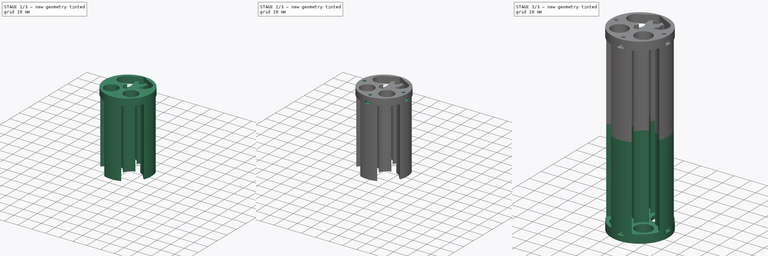
[diagram: build sequence overview — one tinted view per stage of 3, left to right]
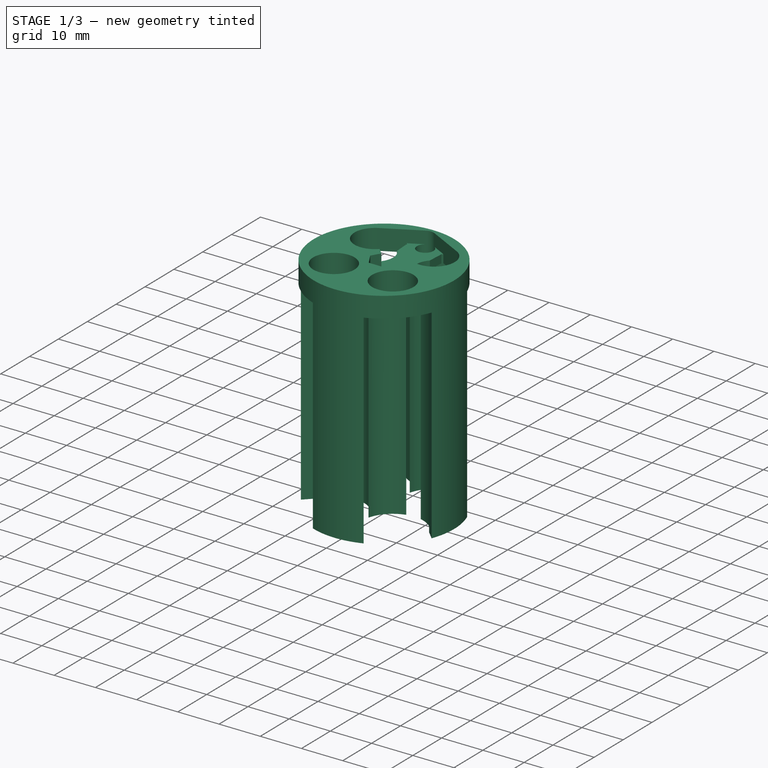
[diagram: stage 1 of 3 — iso view after this stage's code; geometry added in this stage tinted green]
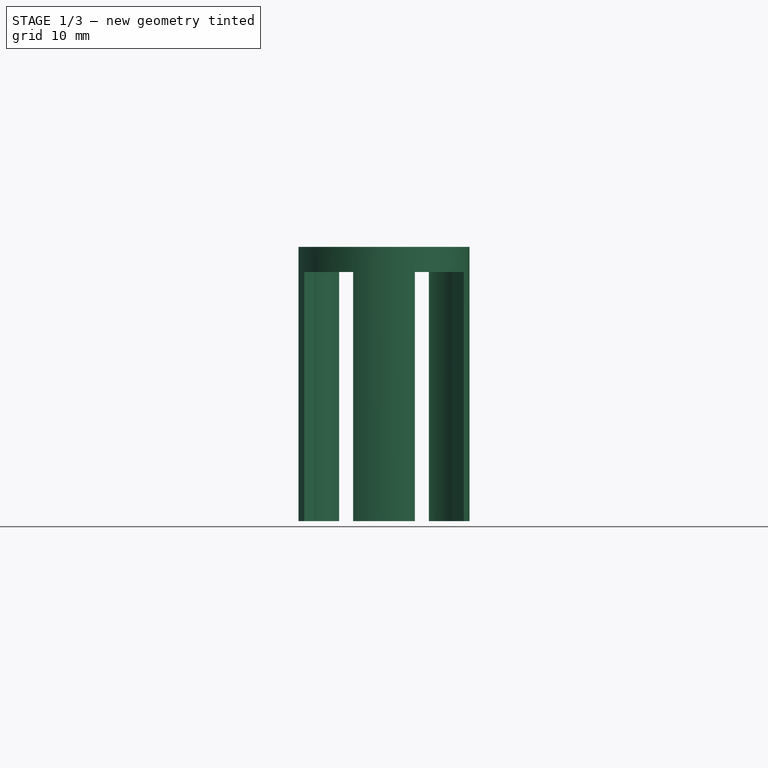
[diagram: stage 1 of 3 — front view after this stage's code; geometry added in this stage tinted green]
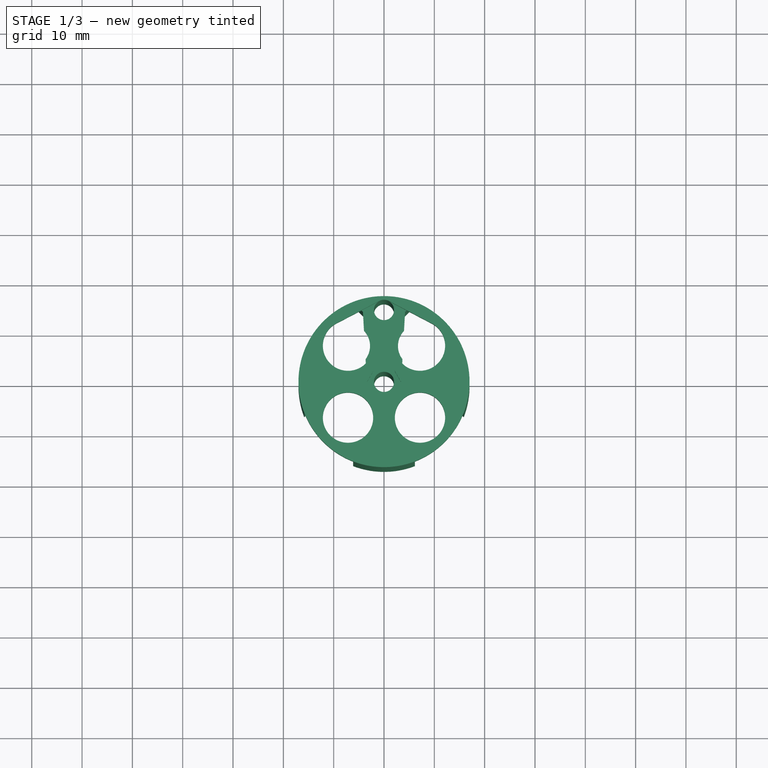
[diagram: stage 1 of 3 — top view after this stage's code; geometry added in this stage tinted green]
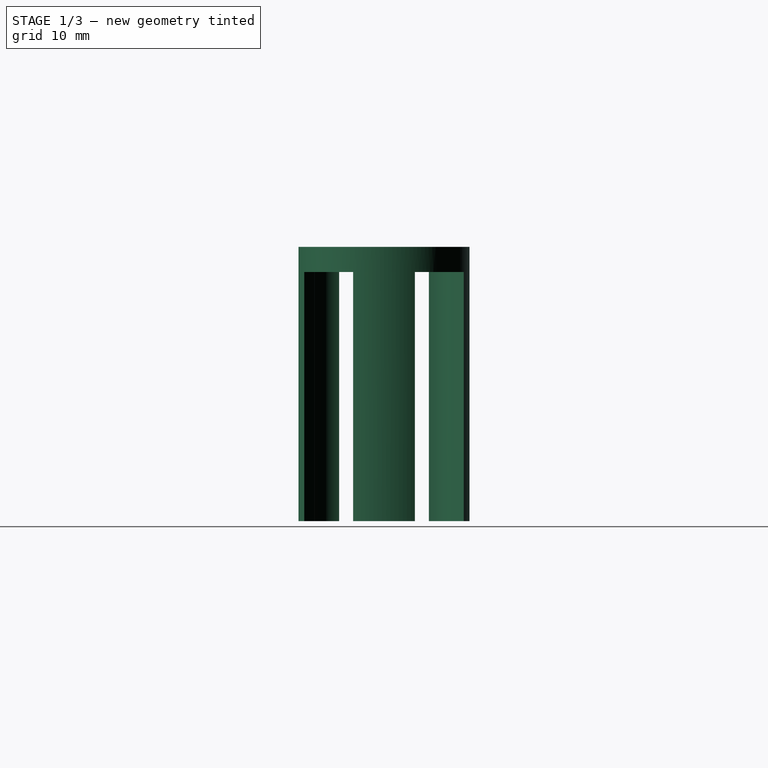
[diagram: stage 1 of 3 — right view after this stage's code; geometry added in this stage tinted green]
FCSTD DOCUMENT  (FreeCAD 0.19R24276 (Git))
Label: 2D_to_8AA_battery_carrier
License: All rights reserved
LicenseURL: http://en.wikipedia.org/wiki/All_rights_reserved
objects: Sketcher::SketchObject×6, PartDesign::Pad×4, Spreadsheet::Sheet×3, PartDesign::Pocket×2, PartDesign::Plane×2, PartDesign::Mirrored×2, PartDesign::Body×1
note: 23 computed .brp shape members not serialized (recipe doc carries the construction recipe); baked Part::Feature solids carry a one-line shape summary decoded from their .brp

FEATURE [Sketcher::SketchObject] Sketch
  FullyConstrained = true
  MapMode = 5
  Support = -> [XY_Plane]
  expr: Constraints[26] = <<carrier_dims>>.battery_bay_diam
  expr: Constraints[29] = <<carrier_dims>>.outer_tube_diam
  expr: Constraints[25] = <<batter_dims>>.AA_diam + <<carrier_dims>>.battery_to_barry_gap
  expr: Constraints[51] = <<carrier_dims>>.battery_bay_opening
  expr: Constraints[40] = <<carrier_dims>>.overall_diam
  expr: Constraints[96] = <<carrier_dims>>.central_tube_diam
  sketch-geometry (52):
    g0: Circle CenterX=0 CenterY=0 CenterZ=0 NormalX=0 NormalY=0 NormalZ=1 AngleXU=0 Radius=17
    g1: Circle CenterX=-7.15 CenterY=7.15 CenterZ=0 NormalX=0 NormalY=0 NormalZ=1 AngleXU=0 Radius=7.3645
    g2: Circle CenterX=7.15 CenterY=7.15 CenterZ=0 NormalX=0 NormalY=0 NormalZ=1 AngleXU=0 Radius=7.3645
    g3: Circle CenterX=7.15 CenterY=-7.15 CenterZ=0 NormalX=0 NormalY=0 NormalZ=1 AngleXU=0 Radius=7.3645
    g4: Circle CenterX=-7.15 CenterY=-7.15 CenterZ=0 NormalX=0 NormalY=0 NormalZ=1 AngleXU=0 Radius=7.3645
    g5: LineSegment StartX=-7.15 StartY=7.15 StartZ=0 EndX=7.15 EndY=7.15 EndZ=0
    g6: LineSegment StartX=7.15 StartY=7.15 StartZ=0 EndX=7.15 EndY=-7.15 EndZ=0
    g7: LineSegment StartX=7.15 StartY=-7.15 StartZ=0 EndX=-7.15 EndY=-7.15 EndZ=0
    g8: LineSegment StartX=-7.15 StartY=-7.15 StartZ=0 EndX=-7.15 EndY=7.15 EndZ=0
    g9: LineSegment StartX=0 StartY=7.15 StartZ=0 EndX=0 EndY=-7.15 EndZ=0
    g10: LineSegment StartX=-7.15 StartY=0 StartZ=0 EndX=7.15 EndY=0 EndZ=0
    g11: Circle CenterX=0 CenterY=0 CenterZ=0 NormalX=0 NormalY=0 NormalZ=1 AngleXU=0 Radius=2
    g12: Circle CenterX=0 CenterY=14.2724 CenterZ=0 NormalX=0 NormalY=0 NormalZ=1 AngleXU=0 Radius=2
    g13: LineSegment StartX=0 StartY=17 StartZ=0 EndX=0 EndY=14.2724 EndZ=0
    g14: LineSegment StartX=0 StartY=14.2724 StartZ=0 EndX=1.93245 EndY=12.3474 EndZ=0
    g15: LineSegment StartX=0 StartY=7.15 StartZ=0 EndX=0 EndY=17 EndZ=0
    g16: LineSegment StartX=-13.8906 StartY=-4.1834 StartZ=0 EndX=-15.851 EndY=-6.14382 EndZ=0
    g17: LineSegment StartX=-13.8906 StartY=-4.1834 StartZ=0 EndX=-4.1834 EndY=-13.8906 EndZ=0
    g18: LineSegment StartX=0 StartY=0 StartZ=0 EndX=-9.03698 EndY=-9.03698 EndZ=0
    g19: LineSegment StartX=0 StartY=0 StartZ=0 EndX=9.03698 EndY=9.03698 EndZ=0
    g20: LineSegment StartX=4.1834 StartY=13.8906 StartZ=0 EndX=13.8906 EndY=4.1834 EndZ=0
    g21: LineSegment StartX=4.1834 StartY=13.8906 StartZ=0 EndX=6.14382 EndY=15.851 EndZ=0
    g22: LineSegment StartX=13.8906 StartY=4.1834 StartZ=0 EndX=15.851 EndY=6.14382 EndZ=0
    g23: LineSegment StartX=0 StartY=0 StartZ=0 EndX=-9.03698 EndY=9.03698 EndZ=0
    g24: LineSegment StartX=0 StartY=0 StartZ=0 EndX=9.03698 EndY=-9.03698 EndZ=0
    g25: LineSegment StartX=4.1834 StartY=-13.8906 StartZ=0 EndX=13.8906 EndY=-4.1834 EndZ=0
    g26: LineSegment StartX=4.1834 StartY=-13.8906 StartZ=0 EndX=6.14382 EndY=-15.851 EndZ=0
    g27: LineSegment StartX=13.8906 StartY=-4.1834 StartZ=0 EndX=15.851 EndY=-6.14382 EndZ=0
    g28: LineSegment StartX=-13.8906 StartY=4.1834 StartZ=0 EndX=-4.1834 EndY=13.8906 EndZ=0
    g29: LineSegment StartX=-4.1834 StartY=13.8906 StartZ=0 EndX=-6.14382 EndY=15.851 EndZ=0
    g30: LineSegment StartX=-13.8906 StartY=4.1834 StartZ=0 EndX=-15.851 EndY=6.14382 EndZ=0
    g31: LineSegment StartX=-4.1834 StartY=-13.8906 StartZ=0 EndX=-6.14382 EndY=-15.851 EndZ=0
    g32: LineSegment StartX=-13.8906 StartY=-4.1834 StartZ=0 EndX=-15.851 EndY=-6.14382 EndZ=0
    g33: Circle CenterX=0 CenterY=0 CenterZ=0 NormalX=0 NormalY=0 NormalZ=1 AngleXU=0 Radius=2
    g34: Circle CenterX=0 CenterY=14.2724 CenterZ=0 NormalX=0 NormalY=0 NormalZ=1 AngleXU=0 Radius=2
    g35: ArcOfCircle CenterX=0 CenterY=0 CenterZ=0 NormalX=0 NormalY=0 NormalZ=1 AngleXU=0 Radius=17 StartAngle=2.77182 EndAngle=3.51136
    g36: ArcOfCircle CenterX=0 CenterY=0 CenterZ=0 NormalX=0 NormalY=0 NormalZ=1 AngleXU=0 Radius=17 StartAngle=1.20103 EndAngle=1.94057
    g37: ArcOfCircle CenterX=0 CenterY=0 CenterZ=0 NormalX=0 NormalY=0 NormalZ=1 AngleXU=0 Radius=17 StartAngle=5.91342 EndAngle=6.65296
    g38: ArcOfCircle CenterX=0 CenterY=0 CenterZ=0 NormalX=0 NormalY=0 NormalZ=1 AngleXU=0 Radius=17 StartAngle=4.34262 EndAngle=5.08216
    g39: ArcOfCircle CenterX=-7.15 CenterY=-7.15 CenterZ=0 NormalX=0 NormalY=0 NormalZ=1 AngleXU=0 Radius=7.3645 StartAngle=1.81274 EndAngle=2.72699
    g40: GeomPoint X=-8.91447 Y=0 Z=0
    g41: ArcOfCircle CenterX=-7.15 CenterY=-7.15 CenterZ=0 NormalX=0 NormalY=0 NormalZ=1 AngleXU=0 Radius=7.3645 StartAngle=0.241945 EndAngle=1.32885
    g42: ArcOfCircle CenterX=-7.15 CenterY=-7.15 CenterZ=0 NormalX=0 NormalY=0 NormalZ=1 AngleXU=0 Radius=7.3645 StartAngle=5.12699 EndAngle=6.04124
    g43: ArcOfCircle CenterX=-7.15 CenterY=7.15 CenterZ=0 NormalX=0 NormalY=0 NormalZ=1 AngleXU=0 Radius=7.3645 StartAngle=4.95433 EndAngle=6.04124
    g44: ArcOfCircle CenterX=-7.15 CenterY=7.15 CenterZ=0 NormalX=0 NormalY=0 NormalZ=1 AngleXU=0 Radius=7.3645 StartAngle=0.241945 EndAngle=1.1562
    g45: ArcOfCircle CenterX=-7.15 CenterY=7.15 CenterZ=0 NormalX=0 NormalY=0 NormalZ=1 AngleXU=0 Radius=7.3645 StartAngle=3.55619 EndAngle=4.47044
    g46: ArcOfCircle CenterX=7.15 CenterY=7.15 CenterZ=0 NormalX=0 NormalY=0 NormalZ=1 AngleXU=0 Radius=7.3645 StartAngle=1.9854 EndAngle=2.89965
    g47: ArcOfCircle CenterX=7.15 CenterY=7.15 CenterZ=0 NormalX=0 NormalY=0 NormalZ=1 AngleXU=0 Radius=7.3645 StartAngle=3.38354 EndAngle=4.47044
    g48: ArcOfCircle CenterX=7.15 CenterY=7.15 CenterZ=0 NormalX=0 NormalY=0 NormalZ=1 AngleXU=0 Radius=7.3645 StartAngle=4.95433 EndAngle=5.86858
    g49: ArcOfCircle CenterX=7.15 CenterY=-7.15 CenterZ=0 NormalX=0 NormalY=0 NormalZ=1 AngleXU=0 Radius=7.3645 StartAngle=1.81274 EndAngle=2.89965
    g50: ArcOfCircle CenterX=7.15 CenterY=-7.15 CenterZ=0 NormalX=0 NormalY=0 NormalZ=1 AngleXU=0 Radius=7.3645 StartAngle=0.414601 EndAngle=1.32885
    g51: ArcOfCircle CenterX=7.15 CenterY=-7.15 CenterZ=0 NormalX=0 NormalY=0 NormalZ=1 AngleXU=0 Radius=7.3645 StartAngle=3.38354 EndAngle=4.29779
  constraints (141):
    c: Coincident(g0,g-1)
    c: Coincident(g5,g6)
    c: Coincident(g6,g7)
    c: Coincident(g7,g8)
    c: Coincident(g8,g5)
    c: Horizontal(g5)
    c: Horizontal(g7)
    c: Vertical(g6)
    c: Vertical(g8)
    c: PointOnObject(g9,g5)
    c: PointOnObject(g9,g7)
    c: Vertical(g9)
    c: Symmetric(g9,g9,g-1)
    c: PointOnObject(g10,g8)
    c: PointOnObject(g10,g6)
    c: Horizontal(g10)
    c: Symmetric(g10,g10,g-1)
    c: Equal(g5,g6)
    c: Coincident(g1,g5)
    c: Coincident(g2,g5)
    c: Coincident(g3,g6)
    c: Coincident(g4,g7)
    c: Equal(g3,g4)
    c: Equal(g4,g1)
    c: Equal(g1,g2)
    c: DistanceY(g4,g1) = 14.3
    c: Diameter(g1) = 14.729
    c: Coincident(g11,g-1)
    c: PointOnObject(g13,g0)
    c: Diameter(g12) = 4
    c: Coincident(g13,g12)
    c: Coincident(g14,g12)
    c: PointOnObject(g14,g2)
    c: Perpendicular(g2,g14)
    c: Vertical(g13)
    c: Equal(g13,g14)
    c: Coincident(g15,g9)
    c: PointOnObject(g15,g0)
    c: Vertical(g15)
    c: PointOnObject(g12,g15)
    c: Diameter(g0) = 34
    c: PointOnObject(g16,g4)
    c: PointOnObject(g16,g0)
    c: Coincident(g17,g16)
    c: PointOnObject(g17,g4)
    c: PointOnObject(g31,g0)
    c: Coincident(g18,g-1)
    c: PointOnObject(g18,g17)
    c: PointOnObject(g4,g18)
    c: Perpendicular(g17,g18)
    c: Parallel(g16,g18)
    c: Distance(g17) = 13.728
    c: Coincident(g19,g-1)
    c: PointOnObject(g2,g19)
    c: PointOnObject(g20,g2)
    c: PointOnObject(g20,g2)
    c: PointOnObject(g19,g20)
    c: Perpendicular(g19,g20)
    c: Coincident(g21,g20)
    c: Coincident(g22,g20)
    c: PointOnObject(g22,g0)
    c: Parallel(g22,g21)
    c: Parallel(g21,g19)
    c: Coincident(g23,g-1)
    c: Coincident(g24,g-1)
    c: PointOnObject(g25,g3)
    c: PointOnObject(g25,g3)
    c: Coincident(g26,g25)
    c: Coincident(g27,g25)
    c: PointOnObject(g28,g1)
    c: PointOnObject(g28,g1)
    c: Coincident(g29,g28)
    c: PointOnObject(g29,g0)
    c: Coincident(g30,g28)
    c: PointOnObject(g1,g23)
    c: PointOnObject(g3,g24)
    c: PointOnObject(g24,g25)
    c: PointOnObject(g23,g28)
    c: Parallel(g29,g30)
    c: Parallel(g30,g23)
    c: Parallel(g23,g26)
    c: Parallel(g26,g27)
    c: Perpendicular(g24,g25)
    c: Perpendicular(g28,g23)
    c: Equal(g25,g28)
    c: Equal(g28,g17)
    c: Equal(g28,g20)
    c: Coincident(g31,g17)
    c: Coincident(g32,g16)
    c: Coincident(g32,g16)
    c: Coincident(g33,g-1)
    c: Equal(g11,g33)
    c: Coincident(g34,g12)
    c: Equal(g34,g12)
    c: Coincident(g35,g33)
    c: Coincident(g35,g32)
    c: Diameter(g33) = 4
    c: Coincident(g35,g30)
    c: Coincident(g36,g33)
    c: Coincident(g36,g29)
    c: Coincident(g36,g21)
    c: Coincident(g37,g33)
    c: Coincident(g37,g22)
    c: Coincident(g37,g27)
    c: Coincident(g38,g33)
    c: Coincident(g38,g26)
    c: Coincident(g38,g31)
    c: Parallel(g31,g18)
    c: Coincident(g39,g32)
    c: Coincident(g39,g40)
    c: Coincident(g39,g4)
    c: Coincident(g41,g39)
    c: PointOnObject(g41,g4)
    c: PointOnObject(g41,g1)
    c: PointOnObject(g41,g3)
    c: Coincident(g42,g39)
    c: Coincident(g31,g42)
    c: Coincident(g43,g1)
    c: Coincident(g43,g41)
    c: PointOnObject(g43,g2)
    c: Coincident(g44,g43)
    c: Coincident(g44,g29)
    c: Coincident(g45,g43)
    c: Coincident(g45,g30)
    c: Coincident(g45,g39)
    c: Coincident(g46,g2)
    c: Coincident(g46,g21)
    c: Coincident(g46,g44)
    c: Coincident(g47,g46)
    c: Coincident(g47,g43)
    c: Coincident(g48,g46)
    c: Coincident(g48,g22)
    c: Coincident(g49,g3)
    c: Coincident(g49,g41)
    c: Coincident(g49,g47)
    c: Coincident(g50,g49)
    c: Coincident(g50,g48)
    c: Coincident(g50,g27)
    c: Coincident(g51,g49)
    c: Coincident(g51,g42)
    c: Coincident(g51,g26)
FEATURE [Spreadsheet::Sheet] Spreadsheet  label="carrier_dims"
  cells = A1=battery to battery gap; B1(battery_to_barry_gap)=0; A2=carrier battery length; B2(carrier_battery_length)=99; A3=central tube; B3(central_tube_diam)=4; A4=outer tube; B4(outer_tube_diam)=4; A5=carrier overall diam; B5(overall_diam)=34; A6=battery opening ; B6(battery_bay_opening)==<<batter_dims>>.AA_diam * 0.96; A7=battery bay buffer; B7(battery_bay_diam)==<<batter_dims>>.AA_diam * 1.03; A8=battery end opening diam; B8(battery_end_opening_diam)=10; A9=cap_plate_thickness; B9(cap_plate_thickness)=5
FEATURE [Spreadsheet::Sheet] Spreadsheet001  label="batter_dims"
  cells = A1=AA battery diam; B1(AA_diam)=14.3; A2=AA bottom diam; B2(AA_bottom_diam)=8.75
FEATURE [Sketcher::SketchObject] Sketch001
  ExternalGeometry = -> [Sketch]
  FullyConstrained = true
  MapMode = 5
  Support = -> [XY_Plane]
  expr: Constraints[9] = <<carrier_dims>>.battery_end_opening_diam
  expr: Constraints[29] = <<screw dims>>.m3_nut_diam
  expr: .AttachmentOffset.Base.z = 0
  sketch-geometry (26):
    g0: Circle CenterX=0 CenterY=0 CenterZ=0 NormalX=0 NormalY=0 NormalZ=1 AngleXU=0 Radius=17
    g1: Circle CenterX=-7.15 CenterY=-7.15 CenterZ=0 NormalX=0 NormalY=0 NormalZ=1 AngleXU=0 Radius=5
    g2: Circle CenterX=-7.15 CenterY=7.15 CenterZ=0 NormalX=0 NormalY=0 NormalZ=1 AngleXU=0 Radius=5
    g3: Circle CenterX=7.15 CenterY=7.15 CenterZ=0 NormalX=0 NormalY=0 NormalZ=1 AngleXU=0 Radius=5
    g4: Circle CenterX=7.15 CenterY=-7.15 CenterZ=0 NormalX=0 NormalY=0 NormalZ=1 AngleXU=0 Radius=5
    g5: LineSegment StartX=3.34863 StartY=0 StartZ=0 EndX=1.67432 EndY=2.9 EndZ=0
    g6: LineSegment StartX=1.67432 StartY=2.9 StartZ=0 EndX=-1.67432 EndY=2.9 EndZ=0
    g7: LineSegment StartX=-1.67432 StartY=2.9 StartZ=0 EndX=-3.34863 EndY=0 EndZ=0
    g8: LineSegment StartX=-3.34863 StartY=0 StartZ=0 EndX=-1.67432 EndY=-2.9 EndZ=0
    g9: LineSegment StartX=-1.67432 StartY=-2.9 StartZ=0 EndX=1.67432 EndY=-2.9 EndZ=0
    g10: LineSegment StartX=1.67432 StartY=-2.9 StartZ=0 EndX=3.34863 EndY=0 EndZ=0
    g11: Circle CenterX=0 CenterY=0 CenterZ=0 NormalX=0 NormalY=0 NormalZ=1 AngleXU=0 Radius=3.34863
    g12: Circle CenterX=0 CenterY=14.2724 CenterZ=0 NormalX=0 NormalY=0 NormalZ=1 AngleXU=0 Radius=2
    g13: LineSegment StartX=-3.61447 StartY=3.61447 StartZ=0 EndX=-2.12295 EndY=2.12295 EndZ=0
    g14: LineSegment StartX=2.12295 StartY=2.12295 StartZ=0 EndX=3.61447 EndY=3.61447 EndZ=0
    g15: LineSegment StartX=-3.34863 StartY=0 StartZ=0 EndX=-2.12295 EndY=2.12295 EndZ=0
    g16: LineSegment StartX=3.34863 StartY=0 StartZ=0 EndX=2.12295 EndY=2.12295 EndZ=0
    g17: LineSegment StartX=-0.926466 StartY=16.0449 StartZ=0 EndX=-9.46616 EndY=11.5812 EndZ=0
    g18: LineSegment StartX=0.926466 StartY=16.0449 StartZ=0 EndX=9.46616 EndY=11.5812 EndZ=0
    g19: ArcOfCircle CenterX=-7.15 CenterY=7.15 CenterZ=0 NormalX=0 NormalY=0 NormalZ=1 AngleXU=0 Radius=5 StartAngle=2.05244 EndAngle=5.49779
    g20: ArcOfCircle CenterX=7.15 CenterY=7.15 CenterZ=0 NormalX=0 NormalY=0 NormalZ=1 AngleXU=0 Radius=5 StartAngle=3.92699 EndAngle=7.37234
    g21: LineSegment StartX=-9.46616 StartY=11.5812 StartZ=0 EndX=-0.926466 EndY=16.0449 EndZ=0
    g22: LineSegment StartX=0.926466 StartY=16.0449 StartZ=0 EndX=9.46616 EndY=11.5812 EndZ=0
    g23: ArcOfCircle CenterX=0 CenterY=14.2724 CenterZ=0 NormalX=0 NormalY=0 NormalZ=1 AngleXU=0 Radius=2 StartAngle=1.08916 EndAngle=2.05244
    g24: LineSegment StartX=0 StartY=0 StartZ=0 EndX=7.15 EndY=7.15 EndZ=0
    g25: LineSegment StartX=0 StartY=0 StartZ=0 EndX=-7.15 EndY=7.15 EndZ=0
  constraints (63):
    c: Coincident(g0,g-1)
    c: PointOnObject(g-5,g0)
    c: Coincident(g1,g-9)
    c: Coincident(g2,g-6)
    c: Coincident(g3,g-7)
    c: Coincident(g4,g-8)
    c: Equal(g4,g1)
    c: Equal(g1,g2)
    c: Equal(g2,g3)
    c: Diameter(g4) = 10
    c: Coincident(g5,g6)
    c: Coincident(g6,g7)
    c: Coincident(g7,g8)
    c: Coincident(g8,g9)
    c: Coincident(g9,g10)
    c: Coincident(g10,g5)
    c: Equal(g5, g6-g10) x5
    c: PointOnObject(g5,g11)
    c: PointOnObject(g6,g11)
    c: PointOnObject(g7,g11)
    c: PointOnObject(g8,g11)
    c: PointOnObject(g9,g11)
    c: PointOnObject(g10,g11)
    c: Coincident(g11,g0)
    c: Horizontal(g9)
    c: Distance(g8,g5) = 5.8
    c: Coincident(g12,g-4)
    c: Equal(g12,g-4)
    c: PointOnObject(g13,g7)
    c: PointOnObject(g14,g3)
    c: PointOnObject(g14,g5)
    c: Coincident(g15,g8)
    c: Coincident(g15,g13)
    c: Coincident(g16,g10)
    c: Coincident(g16,g14)
    c: PointOnObject(g13,g2)
    c: PointOnObject(g17,g12)
    c: Tangent(g17,g12)
    c: PointOnObject(g18,g12)
    c: Tangent(g18,g12)
    c: Equal(g18,g17)
    c: PointOnObject(g18,g3)
    c: Tangent(g18,g3)
    c: PointOnObject(g17,g2)
    c: Coincident(g19,g2)
    c: Coincident(g19,g17)
    c: PointOnObject(g19,g13)
    c: Coincident(g20,g3)
    c: Coincident(g20,g18)
    c: PointOnObject(g20,g14)
    c: Coincident(g21,g19)
    c: Coincident(g21,g17)
    c: Coincident(g22,g18)
    c: Coincident(g22,g20)
    c: Coincident(g23,g12)
    c: Coincident(g23,g22)
    c: PointOnObject(g23,g21)
    c: Coincident(g24,g0)
    c: Coincident(g24,g20)
    c: Coincident(g25,g0)
    c: Coincident(g25,g19)
    c: Tangent(g13,g25)
    c: Tangent(g14,g24)
FEATURE [Spreadsheet::Sheet] Spreadsheet002  label="screw dims"
  cells = A1=m3 nut diam; B1(m3_nut_diam)=5.8; A2=m3 nut thickness; B2(m3_nut_thickness)=3.5; A4=m2 diam; B4(m2_diam)=2.2; A5=m2 nut; B5(m2_nut_width)=4; A6=m2 nut thickness; B6(m2_nut_thickness)=2
FEATURE [Sketcher::SketchObject] Sketch002
  ExternalGeometry = -> [Sketch]
  FullyConstrained = true
  MapMode = 5
  Support = -> [XY_Plane]
  expr: Constraints[73] = <<screw dims>>.m2_nut_width
  sketch-geometry (35):
    g0: LineSegment StartX=-14.2724 StartY=0 StartZ=0 EndX=0 EndY=0 EndZ=0
    g1: LineSegment StartX=0 StartY=0 StartZ=0 EndX=14.2724 EndY=0 EndZ=0
    g2: LineSegment StartX=0 StartY=0 StartZ=0 EndX=0 EndY=-14.2724 EndZ=0
    g3: LineSegment StartX=-14.2724 StartY=0 StartZ=0 EndX=-12.3474 EndY=1.93245 EndZ=0
    g4: LineSegment StartX=-14.2724 StartY=0 StartZ=0 EndX=-17 EndY=0 EndZ=0
    g5: LineSegment StartX=-13.1177 StartY=-2 StartZ=0 EndX=-11.963 EndY=2.53606e-11 EndZ=0
    g6: LineSegment StartX=-11.963 StartY=2.53608e-11 StartZ=0 EndX=-13.1177 EndY=2 EndZ=0
    g7: LineSegment StartX=-13.1177 StartY=2 StartZ=0 EndX=-15.4271 EndY=2 EndZ=0
    g8: LineSegment StartX=-15.4271 StartY=2 StartZ=0 EndX=-16.5818 EndY=-6.0043e-12 EndZ=0
    g9: LineSegment StartX=-16.5818 StartY=-6.0043e-12 StartZ=0 EndX=-15.4271 EndY=-2 EndZ=0
    g10: LineSegment StartX=-15.4271 StartY=-2 StartZ=0 EndX=-13.1177 EndY=-2 EndZ=0
    g11: Circle CenterX=-14.2724 CenterY=0 CenterZ=0 NormalX=0 NormalY=0 NormalZ=1 AngleXU=0 Radius=2.3094
    g12: LineSegment StartX=7e-16 StartY=-11.963 StartZ=0 EndX=-2 EndY=-13.1177 EndZ=0
    g13: LineSegment StartX=-2 StartY=-13.1177 StartZ=0 EndX=-2 EndY=-15.4271 EndZ=0
    g14: LineSegment StartX=-2 StartY=-15.4271 StartZ=0 EndX=-2e-16 EndY=-16.5818 EndZ=0
    g15: LineSegment StartX=-1e-16 StartY=-16.5818 StartZ=0 EndX=2 EndY=-15.4271 EndZ=0
    g16: LineSegment StartX=2 StartY=-15.4271 StartZ=0 EndX=2 EndY=-13.1177 EndZ=0
    g17: LineSegment StartX=2 StartY=-13.1177 StartZ=0 EndX=7e-16 EndY=-11.963 EndZ=0
    g18: Circle CenterX=0 CenterY=-14.2724 CenterZ=0 NormalX=0 NormalY=0 NormalZ=1 AngleXU=0 Radius=2.3094
    g19: LineSegment StartX=15.4271 StartY=-2 StartZ=0 EndX=16.5818 EndY=0 EndZ=0
    g20: LineSegment StartX=16.5818 StartY=0 StartZ=0 EndX=15.4271 EndY=2 EndZ=0
    g21: LineSegment StartX=15.4271 StartY=2 StartZ=0 EndX=13.1177 EndY=2 EndZ=0
    g22: LineSegment StartX=13.1177 StartY=2 StartZ=0 EndX=11.963 EndY=-2e-16 EndZ=0
    g23: LineSegment StartX=11.963 StartY=-3e-16 StartZ=0 EndX=13.1177 EndY=-2 EndZ=0
    g24: LineSegment StartX=13.1177 StartY=-2 StartZ=0 EndX=15.4271 EndY=-2 EndZ=0
    g25: Circle CenterX=14.2724 CenterY=0 CenterZ=0 NormalX=0 NormalY=0 NormalZ=1 AngleXU=0 Radius=2.3094
    g26: LineSegment StartX=-15.4271 StartY=2 StartZ=0 EndX=-16.8819 EndY=2 EndZ=0
    g27: LineSegment StartX=-15.4271 StartY=-2 StartZ=0 EndX=-16.8819 EndY=-2 EndZ=0
    g28: LineSegment StartX=15.4271 StartY=2 StartZ=0 EndX=16.8819 EndY=2 EndZ=0
    g29: LineSegment StartX=15.4271 StartY=-2 StartZ=0 EndX=16.8819 EndY=-2 EndZ=0
    g30: LineSegment StartX=2 StartY=-15.4271 StartZ=0 EndX=2 EndY=-16.8819 EndZ=0
    g31: LineSegment StartX=-2 StartY=-15.4271 StartZ=0 EndX=-2 EndY=-16.8819 EndZ=0
    g32: ArcOfCircle CenterX=0 CenterY=0 CenterZ=0 NormalX=0 NormalY=0 NormalZ=1 AngleXU=0 Radius=17 StartAngle=3.02367 EndAngle=3.25951
    g33: ArcOfCircle CenterX=0 CenterY=0 CenterZ=0 NormalX=0 NormalY=0 NormalZ=1 AngleXU=0 Radius=17 StartAngle=6.16527 EndAngle=6.40111
    g34: ArcOfCircle CenterX=0 CenterY=0 CenterZ=0 NormalX=0 NormalY=0 NormalZ=1 AngleXU=0 Radius=17 StartAngle=4.59447 EndAngle=4.83031
  constraints (90):
    c: Coincident(g0,g-1)
    c: Coincident(g1,g-1)
    c: Coincident(g2,g-1)
    c: Equal(g0,g1)
    c: Equal(g1,g2)
    c: PointOnObject(g3,g-4)
    c: PointOnObject(g4,g-13)
    c: Horizontal(g4)
    c: Equal(g3,g4)
    c: Perpendicular(g-4,g3)
    c: Coincident(g0,g3)
    c: Coincident(g0,g4)
    c: Horizontal(g0)
    c: Horizontal(g1)
    c: Vertical(g2)
    c: Coincident(g5,g6)
    c: Coincident(g6,g7)
    c: Coincident(g7,g8)
    c: Coincident(g8,g9)
    c: Coincident(g9,g10)
    c: Coincident(g10,g5)
    c: Equal(g5, g6-g10) x5
    c: PointOnObject(g5,g11)
    c: PointOnObject(g6,g11)
    c: PointOnObject(g7,g11)
    c: PointOnObject(g8,g11)
    c: PointOnObject(g9,g11)
    c: PointOnObject(g10,g11)
    c: Coincident(g11,g0)
    c: Coincident(g12,g13)
    c: Coincident(g13,g14)
    c: Coincident(g14,g15)
    c: Coincident(g15,g16)
    c: Coincident(g16,g17)
    c: Coincident(g17,g12)
    c: Equal(g12, g13-g17) x5
    c: PointOnObject(g12,g18)
    c: PointOnObject(g13,g18)
    c: PointOnObject(g14,g18)
    c: PointOnObject(g15,g18)
    c: PointOnObject(g16,g18)
    c: PointOnObject(g17,g18)
    c: Coincident(g18,g2)
    c: Coincident(g19,g20)
    c: Coincident(g20,g21)
    c: Coincident(g21,g22)
    c: Coincident(g22,g23)
    c: Coincident(g23,g24)
    c: Coincident(g24,g19)
    c: Equal(g19, g20-g24) x5
    c: PointOnObject(g19,g25)
    c: PointOnObject(g20,g25)
    c: PointOnObject(g21,g25)
    c: PointOnObject(g22,g25)
    c: PointOnObject(g23,g25)
    c: PointOnObject(g24,g25)
    c: Coincident(g25,g1)
    c: Horizontal(g10)
    c: Horizontal(g24)
    c: Equal(g24,g16)
    c: Equal(g16,g10)
    c: Distance(g9,g5) = 4
    c: Vertical(g16)
    c: Coincident(g26,g7)
    c: PointOnObject(g26,g-13)
    c: Coincident(g27,g10)
    c: PointOnObject(g27,g-13)
    c: Horizontal(g27)
    c: Horizontal(g26)
    c: Coincident(g28,g21)
    c: PointOnObject(g28,g-9)
    c: Horizontal(g28)
    c: Coincident(g29,g24)
    c: PointOnObject(g29,g-9)
    c: Horizontal(g29)
    c: Coincident(g30,g16)
    c: PointOnObject(g30,g-10)
    c: Vertical(g30)
    c: Coincident(g31,g13)
    c: PointOnObject(g31,g-10)
    c: Vertical(g31)
    c: Coincident(g32,g-1)
    c: Coincident(g32,g26)
    c: PointOnObject(g32,g27)
    c: Coincident(g33,g32)
    c: Coincident(g33,g28)
    c: PointOnObject(g33,g29)
    c: Coincident(g34,g32)
    c: Coincident(g34,g31)
    c: PointOnObject(g34,g30)
FEATURE [PartDesign::Pad] Pad  label="cap"
  Direction = (1,1,1)
  Length = 5
  Length2 = 100
  Profile = -> Sketch001
  Type = 0
  expr: Length = <<carrier_dims>>.cap_plate_thickness
FEATURE [Sketcher::SketchObject] Sketch003
  ExternalGeometry = -> [Sketch,Sketch001]
  FullyConstrained = true
  MapMode = 5
  Support = -> [XY_Plane]
  expr: Constraints[28] = <<batter_dims>>.AA_bottom_diam
  sketch-geometry (23):
    g0: LineSegment StartX=-3.61447 StartY=3.61447 StartZ=0 EndX=-2.12295 EndY=2.12295 EndZ=0
    g1: LineSegment StartX=3.61447 StartY=3.61447 StartZ=0 EndX=2.12295 EndY=2.12295 EndZ=0
    g2: LineSegment StartX=-4.1834 StartY=13.8906 StartZ=0 EndX=-4.48018 EndY=14.1873 EndZ=0
    g3: LineSegment StartX=-4.48018 StartY=14.1873 StartZ=0 EndX=-0.926466 EndY=16.0449 EndZ=0
    g4: LineSegment StartX=0.926466 StartY=16.0449 StartZ=0 EndX=4.48018 EndY=14.1873 EndZ=0
    g5: LineSegment StartX=4.48018 StartY=14.1873 StartZ=0 EndX=4.1834 EndY=13.8906 EndZ=0
    g6: Circle CenterX=0 CenterY=0 CenterZ=0 NormalX=0 NormalY=0 NormalZ=1 AngleXU=0 Radius=2
    g7: ArcOfCircle CenterX=0 CenterY=14.2724 CenterZ=0 NormalX=0 NormalY=0 NormalZ=1 AngleXU=0 Radius=2 StartAngle=2.05244 EndAngle=7.37234
    g8: LineSegment StartX=-2.12295 StartY=2.12295 StartZ=0 EndX=-3.34863 EndY=0 EndZ=0
    g9: LineSegment StartX=2.12295 StartY=2.12295 StartZ=0 EndX=3.34863 EndY=0 EndZ=0
    g10: LineSegment StartX=1.67432 StartY=-2.9 StartZ=0 EndX=-1.67432 EndY=-2.9 EndZ=0
    g11: LineSegment StartX=-1.67432 StartY=-2.9 StartZ=0 EndX=-3.34863 EndY=0 EndZ=0
    g12: LineSegment StartX=1.67432 StartY=-2.9 StartZ=0 EndX=3.34863 EndY=0 EndZ=0
    g13: Circle CenterX=-7.15 CenterY=7.15 CenterZ=0 NormalX=0 NormalY=0 NormalZ=1 AngleXU=0 Radius=4.375
    g14: Circle CenterX=7.15 CenterY=7.15 CenterZ=0 NormalX=0 NormalY=0 NormalZ=1 AngleXU=0 Radius=4.375
    g15: LineSegment StartX=-4.1834 StartY=13.8906 StartZ=0 EndX=-3.61447 EndY=3.61447 EndZ=0
    g16: LineSegment StartX=4.1834 StartY=13.8906 StartZ=0 EndX=3.61447 EndY=3.61447 EndZ=0
    g17: LineSegment StartX=-4.1834 StartY=13.8906 StartZ=0 EndX=-3.97697 EndY=10.1621 EndZ=0
    g18: LineSegment StartX=-3.61447 StartY=3.61447 StartZ=0 EndX=-3.66386 EndY=4.50662 EndZ=0
    g19: LineSegment StartX=3.61447 StartY=3.61447 StartZ=0 EndX=3.66386 EndY=4.50662 EndZ=0
    g20: LineSegment StartX=4.1834 StartY=13.8906 StartZ=0 EndX=3.97697 EndY=10.1621 EndZ=0
    g21: ArcOfCircle CenterX=-7.15 CenterY=7.15 CenterZ=0 NormalX=0 NormalY=0 NormalZ=1 AngleXU=0 Radius=4.375 StartAngle=5.63442 EndAngle=7.04256
    g22: ArcOfCircle CenterX=7.15 CenterY=7.15 CenterZ=0 NormalX=0 NormalY=0 NormalZ=1 AngleXU=0 Radius=4.375 StartAngle=2.38221 EndAngle=3.79036
  constraints (55):
    c: Coincident(g3,g-8)
    c: Coincident(g2,g3)
    c: PointOnObject(g2,g-8)
    c: PointOnObject(g2,g-10)
    c: Coincident(g4,g-9)
    c: PointOnObject(g4,g-11)
    c: PointOnObject(g4,g-9)
    c: Coincident(g5,g4)
    c: Coincident(g6,g-1)
    c: Equal(g6,g-12)
    c: Coincident(g7,g-7)
    c: Coincident(g7,g3)
    c: PointOnObject(g7,g4)
    c: Coincident(g8,g0)
    c: Coincident(g8,g-14)
    c: Coincident(g0,g-13)
    c: Coincident(g1,g-17)
    c: Coincident(g9,g1)
    c: Coincident(g9,g-17)
    c: Coincident(g10,g-16)
    c: Coincident(g10,g-15)
    c: Coincident(g11,g10)
    c: Coincident(g11,g8)
    c: Coincident(g12,g10)
    c: Coincident(g12,g9)
    c: Coincident(g13,g-3)
    c: Coincident(g14,g-4)
    c: Equal(g13,g14)
    c: Diameter(g13) = 8.75
    c: Coincident(g15,g2)
    c: Coincident(g15,g0)
    c: Coincident(g5,g-11)
    c: Coincident(g16,g5)
    c: Coincident(g2,g-10)
    c: Coincident(g0,g-5)
    c: Coincident(g1,g16)
    c: Coincident(g1,g-6)
    c: Coincident(g17,g2)
    c: PointOnObject(g17,g13)
    c: Coincident(g18,g0)
    c: PointOnObject(g18,g13)
    c: Coincident(g19,g1)
    c: PointOnObject(g19,g14)
    c: Coincident(g20,g5)
    c: PointOnObject(g20,g14)
    c: PointOnObject(g20,g16)
    c: PointOnObject(g19,g16)
    c: PointOnObject(g17,g15)
    c: PointOnObject(g18,g15)
    c: Coincident(g21,g13)
    c: Coincident(g22,g14)
    c: Coincident(g22,g19)
    c: PointOnObject(g22,g20)
    c: Coincident(g21,g17)
    c: PointOnObject(g21,g15)
FEATURE [PartDesign::Pad] Pad003  label="cap bridge"
  BaseFeature = -> Pad
  Direction = (1,1,1)
  Length = 2
  Length2 = 100
  Profile = -> Sketch003
  Type = 0
  expr: Length = <<screw dims>>.m2_nut_thickness
FEATURE [PartDesign::Pad] Pad002  label="battery bay"
  BaseFeature = -> Pad003
  Direction = (1,1,1)
  Length = 49.5
  Length2 = 100
  Profile = -> Sketch
  Reversed = true
  Type = 0
  expr: Length = <<carrier_dims>>.carrier_battery_length / 2
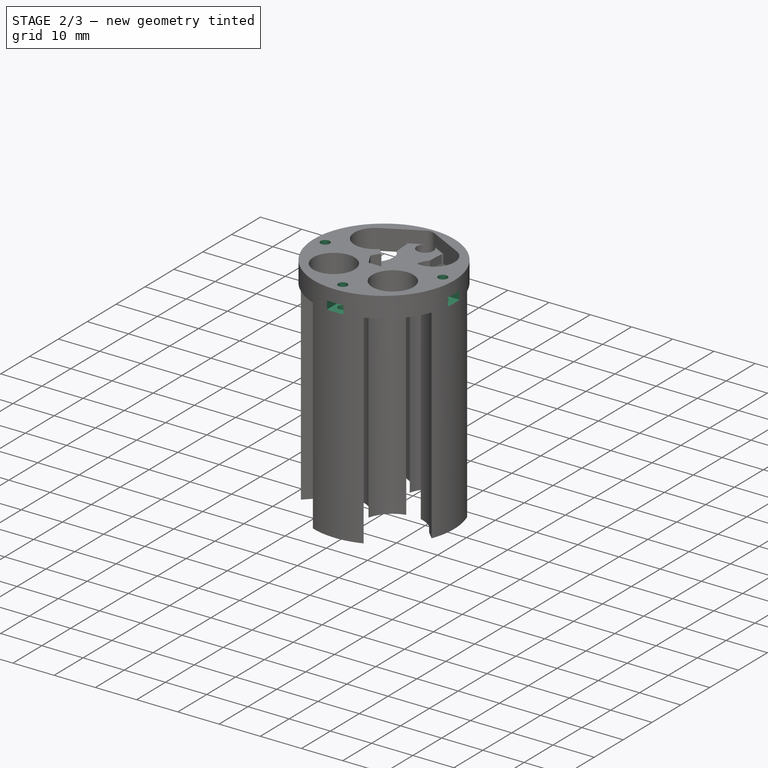
[diagram: stage 2 of 3 — iso view after this stage's code; geometry added in this stage tinted green]
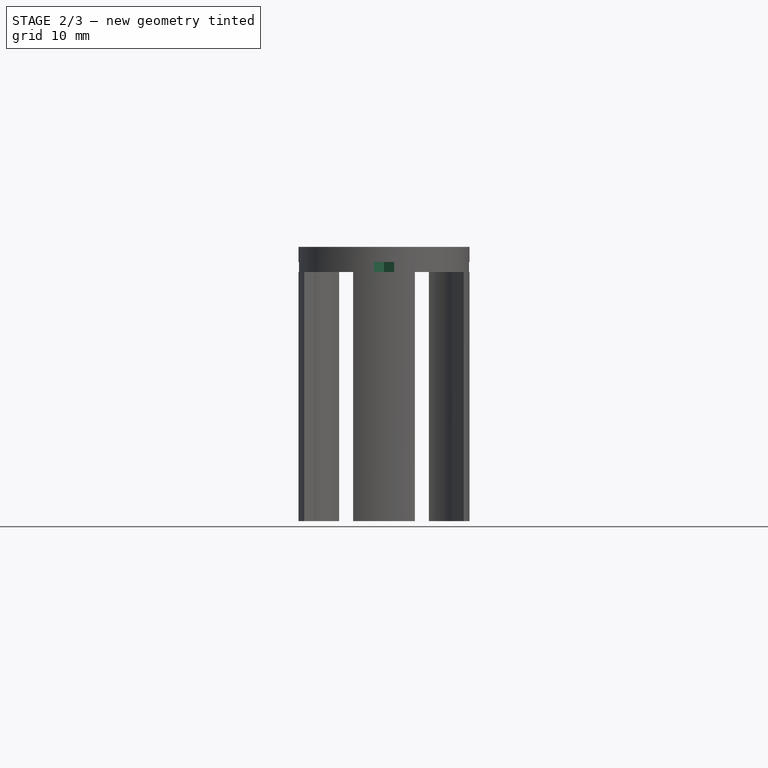
[diagram: stage 2 of 3 — front view after this stage's code; geometry added in this stage tinted green]
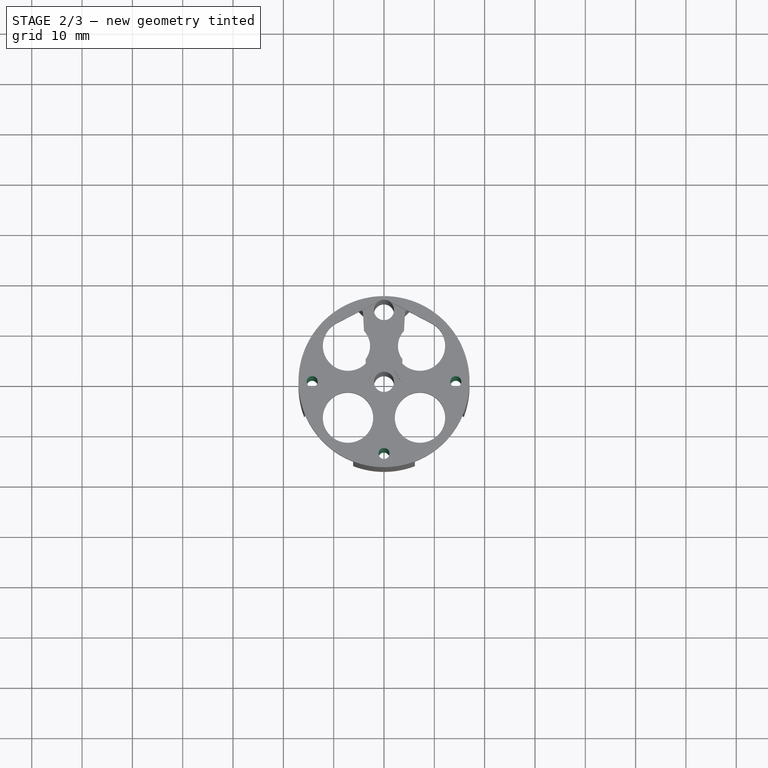
[diagram: stage 2 of 3 — top view after this stage's code; geometry added in this stage tinted green]
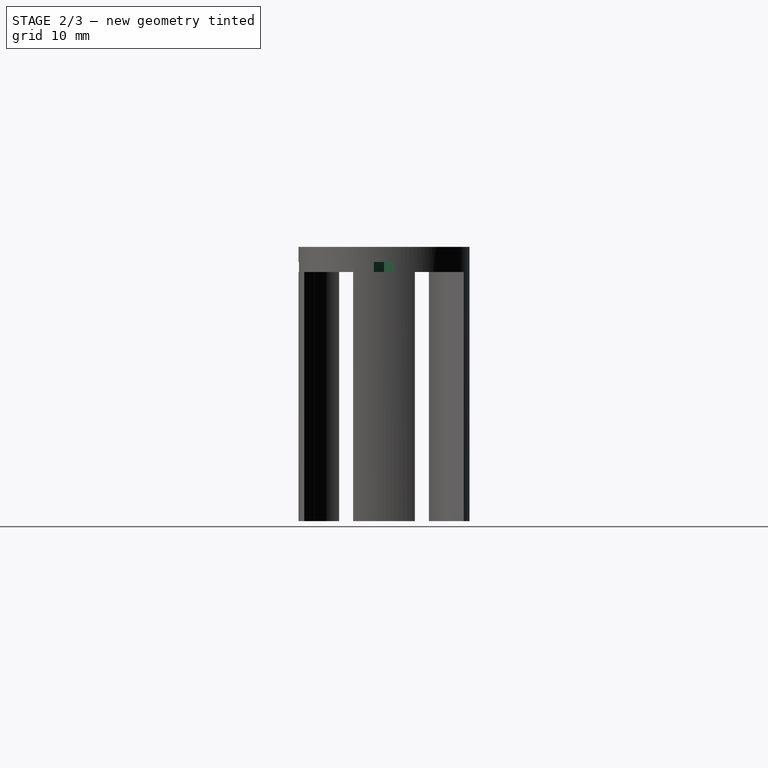
[diagram: stage 2 of 3 — right view after this stage's code; geometry added in this stage tinted green]
FEATURE [PartDesign::Pocket] Pocket  label="m2 screw nut containers"
  BaseFeature = -> Pad002
  Length = 2
  Length2 = 100
  Profile = -> Sketch002
  Reversed = true
  Type = 0
  expr: Length = <<screw dims>>.m2_nut_thickness
FEATURE [Sketcher::SketchObject] Sketch004
  ExternalGeometry = -> [Sketch]
  FullyConstrained = true
  MapMode = 5
  Placement = pos=(0,0,5) rot=(0,0,1;0rad)
  Support = -> [Pocket]
  expr: Constraints[2] = <<screw dims>>.m2_diam
  sketch-geometry (8):
    g0: Circle CenterX=-14.2724 CenterY=0 CenterZ=0 NormalX=0 NormalY=0 NormalZ=1 AngleXU=0 Radius=1.1
    g1: Circle CenterX=0 CenterY=-14.2724 CenterZ=0 NormalX=0 NormalY=0 NormalZ=1 AngleXU=0 Radius=1.1
    g2: Circle CenterX=14.2724 CenterY=0 CenterZ=0 NormalX=0 NormalY=0 NormalZ=1 AngleXU=0 Radius=1.1
    g3: LineSegment StartX=-14.2724 StartY=0 StartZ=0 EndX=-17 EndY=0 EndZ=0
    g4: LineSegment StartX=-14.2724 StartY=0 StartZ=0 EndX=-12.3474 EndY=1.93245 EndZ=0
    g5: LineSegment StartX=-14.2724 StartY=0 StartZ=0 EndX=0 EndY=0 EndZ=0
    g6: LineSegment StartX=0 StartY=0 StartZ=0 EndX=0 EndY=-14.2724 EndZ=0
    g7: LineSegment StartX=0 StartY=0 StartZ=0 EndX=14.2724 EndY=0 EndZ=0
  constraints (22):
    c: Equal(g0,g2)
    c: Equal(g2,g1)
    c: Diameter(g0) = 2.2
    c: PointOnObject(g0,g-1)
    c: PointOnObject(g2,g-1)
    c: PointOnObject(g1,g-2)
    c: Coincident(g3,g0)
    c: PointOnObject(g3,g-5)
    c: Coincident(g4,g0)
    c: PointOnObject(g4,g-4)
    c: Perpendicular(g-4,g4)
    c: Equal(g3,g4)
    c: Coincident(g5,g0)
    c: Coincident(g5,g-1)
    c: Coincident(g6,g-1)
    c: Coincident(g6,g1)
    c: Coincident(g7,g-1)
    c: Coincident(g7,g2)
    c: Equal(g7,g6)
    c: Equal(g6,g5)
    c: Horizontal(g3)
    c: DistanceX(g0,g-1) = 14.2724
FEATURE [PartDesign::Pocket] Pocket001  label="m2 screw holes"
  BaseFeature = -> Pocket
  Length = 0
  Length2 = 100
  Profile = -> Sketch004
  Type = 3
  UpToFace = -> Pocket [Face54]
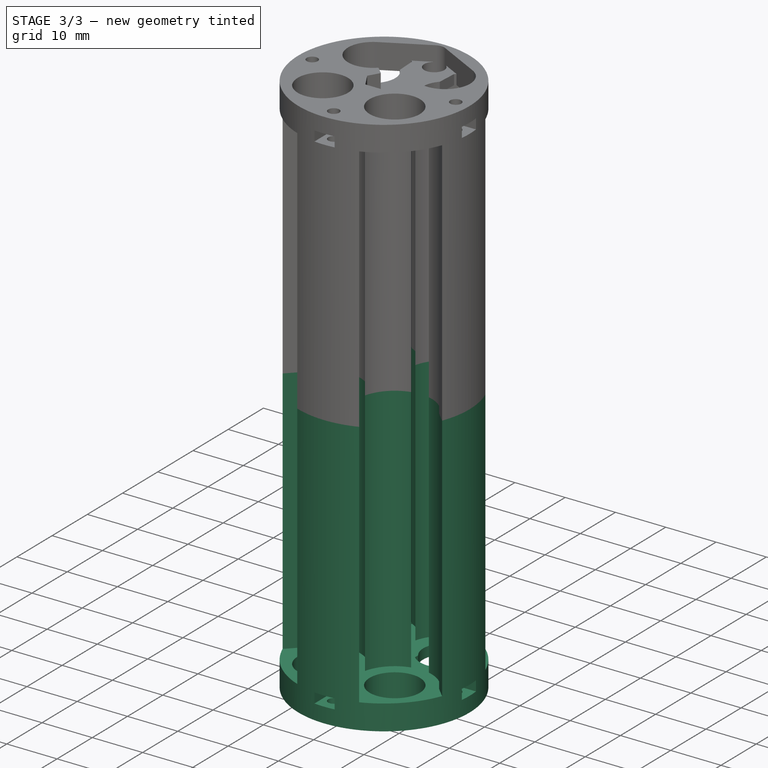
[diagram: stage 3 of 3 — iso view after this stage's code; geometry added in this stage tinted green]
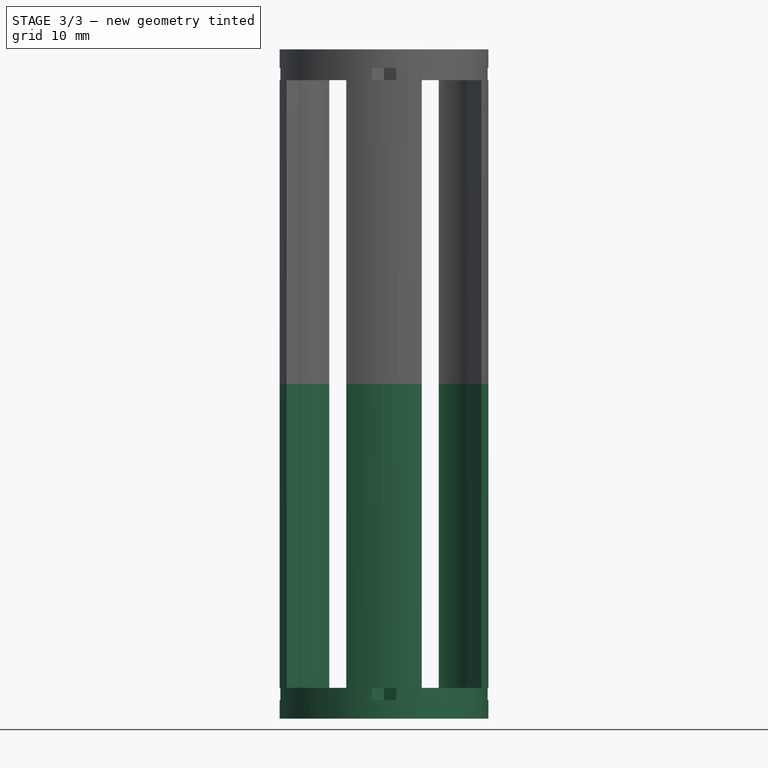
[diagram: stage 3 of 3 — front view after this stage's code; geometry added in this stage tinted green]
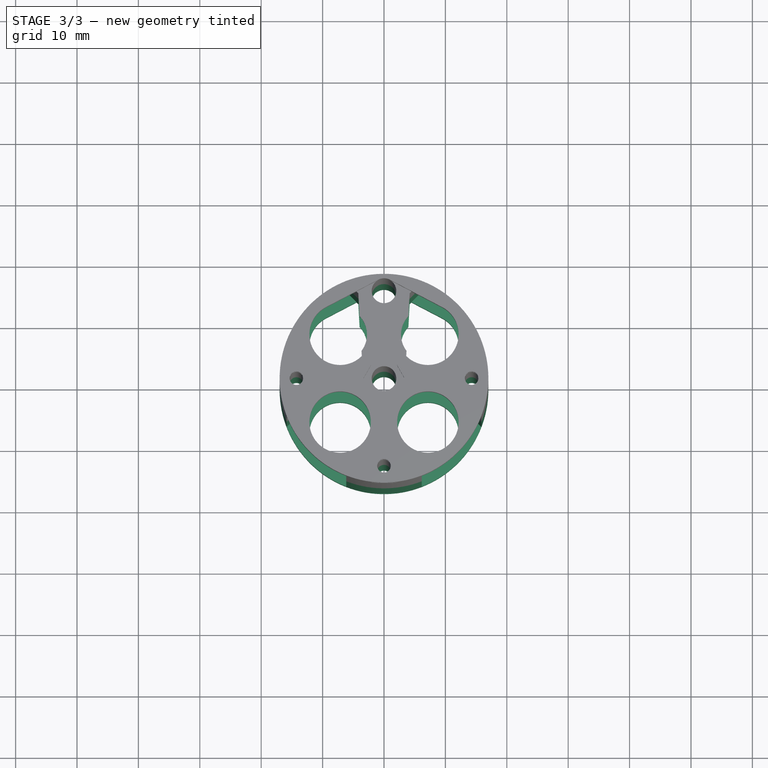
[diagram: stage 3 of 3 — top view after this stage's code; geometry added in this stage tinted green]
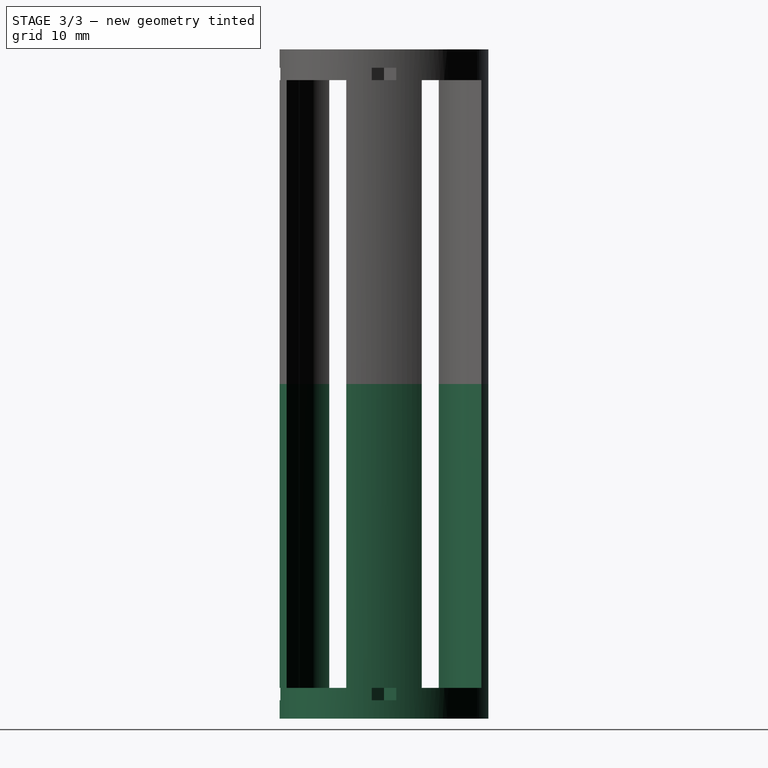
[diagram: stage 3 of 3 — right view after this stage's code; geometry added in this stage tinted green]
FEATURE [PartDesign::Plane] DatumPlane
  Length = 60
  MapMode = 5
  Placement = pos=(0,0,-49.5) rot=(1,0,0;3.14159rad)
  ResizeMode = 0
  Support = -> [Pocket001]
  Width = 60
FEATURE [PartDesign::Mirrored] Mirrored
  BaseFeature = -> Pocket001
  MirrorPlane = -> DatumPlane
  Originals = -> [Pad002,Pad003]
FEATURE [Sketcher::SketchObject] Sketch005
  ExternalGeometry = -> [Sketch001]
  FullyConstrained = true
  MapMode = 5
  Placement = pos=(0,0,-99) rot=(1,0,0;3.14159rad)
  Support = -> [Mirrored]
  sketch-geometry (15):
    g0: ArcOfCircle CenterX=7.15 CenterY=-7.15 CenterZ=0 NormalX=0 NormalY=0 NormalZ=1 AngleXU=0 Radius=5 StartAngle=5.19403 EndAngle=8.63938
    g1: ArcOfCircle CenterX=-7.15 CenterY=-7.15 CenterZ=0 NormalX=0 NormalY=0 NormalZ=1 AngleXU=0 Radius=5 StartAngle=0.785398 EndAngle=4.23075
    g2: ArcOfCircle CenterX=0 CenterY=-14.2724 CenterZ=0 NormalX=0 NormalY=0 NormalZ=1 AngleXU=0 Radius=2 StartAngle=4.23075 EndAngle=5.19403
    g3: LineSegment StartX=9.46616 StartY=-11.5812 StartZ=0 EndX=0.926466 EndY=-16.0449 EndZ=0
    g4: LineSegment StartX=-0.926466 StartY=-16.0449 StartZ=0 EndX=-9.46616 EndY=-11.5812 EndZ=0
    g5: LineSegment StartX=-3.61447 StartY=-3.61447 StartZ=0 EndX=-2.12295 EndY=-2.12295 EndZ=0
    g6: LineSegment StartX=-3.34863 StartY=0 StartZ=0 EndX=-1.67432 EndY=2.9 EndZ=0
    g7: LineSegment StartX=1.67432 StartY=2.9 StartZ=0 EndX=3.34863 EndY=0 EndZ=0
    g8: LineSegment StartX=2.12295 StartY=-2.12295 StartZ=0 EndX=3.61447 EndY=-3.61447 EndZ=0
    g9: LineSegment StartX=2.12295 StartY=-2.12295 StartZ=0 EndX=3.34863 EndY=0 EndZ=0
    g10: LineSegment StartX=1.67432 StartY=2.9 StartZ=0 EndX=-1.67432 EndY=2.9 EndZ=0
    g11: LineSegment StartX=-3.34863 StartY=0 StartZ=0 EndX=-2.12295 EndY=-2.12295 EndZ=0
    g12: Circle CenterX=0 CenterY=0 CenterZ=0 NormalX=0 NormalY=0 NormalZ=1 AngleXU=0 Radius=17
    g13: Circle CenterX=-7.15 CenterY=7.15 CenterZ=0 NormalX=0 NormalY=0 NormalZ=1 AngleXU=0 Radius=5
    g14: Circle CenterX=7.15 CenterY=7.15 CenterZ=0 NormalX=0 NormalY=0 NormalZ=1 AngleXU=0 Radius=5
  constraints (36):
    c: Coincident(g0,g-15)
    c: Coincident(g1,g-3)
    c: Coincident(g2,g-16)
    c: Coincident(g3,g-17)
    c: Coincident(g3,g-17)
    c: Coincident(g4,g-16)
    c: Coincident(g4,g-4)
    c: Coincident(g5,g-12)
    c: Coincident(g5,g-12)
    c: Coincident(g6,g-11)
    c: Coincident(g6,g-10)
    c: Coincident(g7,g-9)
    c: Coincident(g7,g-8)
    c: Coincident(g8,g-7)
    c: Coincident(g8,g-15)
    c: Coincident(g9,g8)
    c: Coincident(g9,g7)
    c: Coincident(g10,g7)
    c: Coincident(g10,g6)
    c: Coincident(g11,g6)
    c: Coincident(g11,g5)
    c: Coincident(g0,g3)
    c: PointOnObject(g0,g8)
    c: Coincident(g1,g5)
    c: PointOnObject(g1,g4)
    c: Coincident(g2,g3)
    c: PointOnObject(g2,g4)
    c: Coincident(g12,g-1)
    c: Coincident(g13,g-14)
    c: Coincident(g14,g-13)
    c: Equal(g14,g-13)
    c: Equal(g-13,g13)
    c: Equal(g12,g-5)
    c: Coincident(g1,g4)
    c: Coincident(g4,g2)
    c: Coincident(g8,g0)
FEATURE [PartDesign::Pad] Pad004
  BaseFeature = -> Mirrored
  Direction = (1,1,1)
  Length = 5
  Length2 = 100
  Profile = -> Sketch005
  Type = 0
  expr: Length = <<carrier_dims>>.cap_plate_thickness
FEATURE [PartDesign::Plane] DatumPlane001
  Length = 60
  MapMode = 5
  Placement = pos=(0,0,-99) rot=(0,0,1;0rad)
  ResizeMode = 0
  Support = -> [Mirrored]
  Width = 60
FEATURE [PartDesign::Mirrored] Mirrored001
  BaseFeature = -> Pad004
  MirrorPlane = -> DatumPlane
  Originals = -> [Pocket,Pocket001]
FEATURE [PartDesign::Body] Body
  Group = -> [Sketch,Sketch001,Sketch002,Pad,Sketch003,Pad003,Pad002,Pocket,Sketch004,Pocket001,DatumPlane001,Sketch005,DatumPlane,Mirrored,Pad004,Mirrored001]
  Origin = -> Origin
  Tip = -> Mirrored001
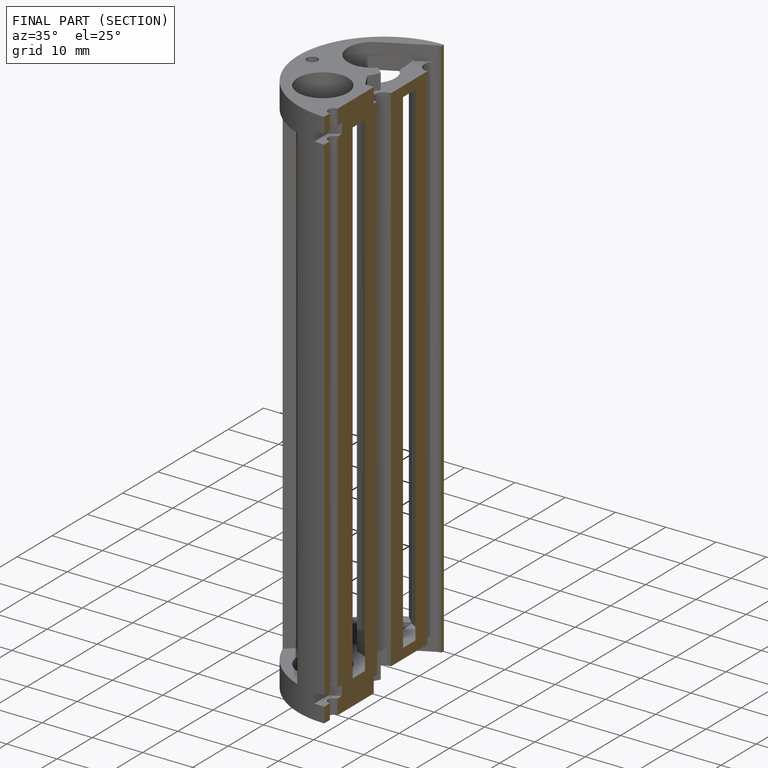
[diagram: finished part — half-section view (interior)]
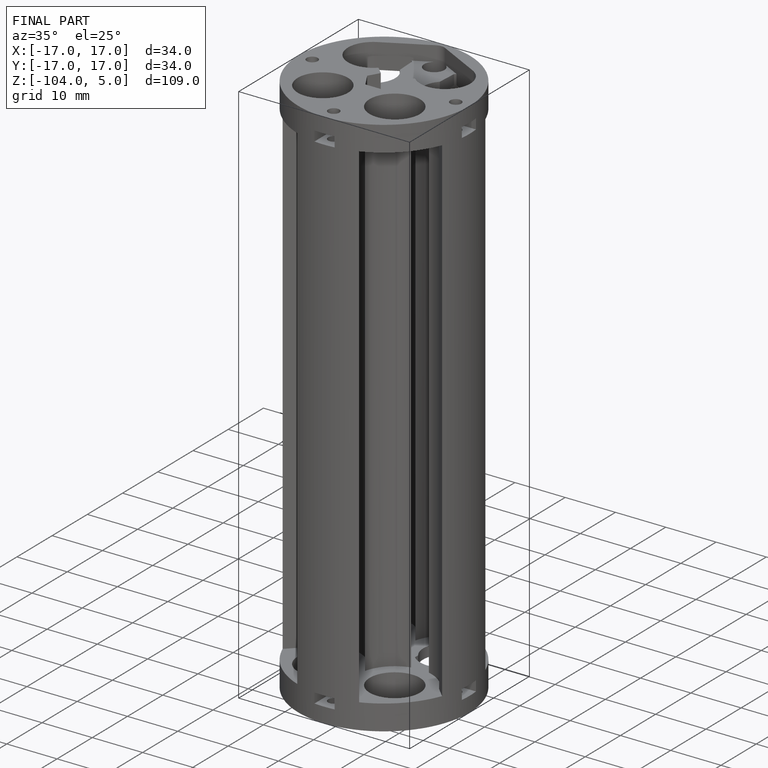
[diagram: finished part — iso view with bounding-box wireframe]
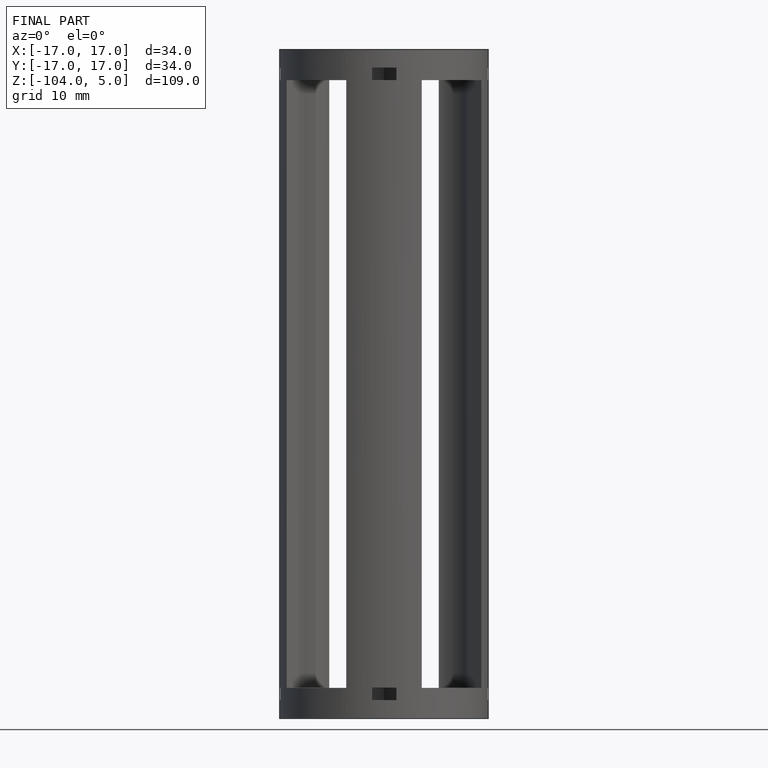
[diagram: finished part — front view with bounding-box wireframe]
